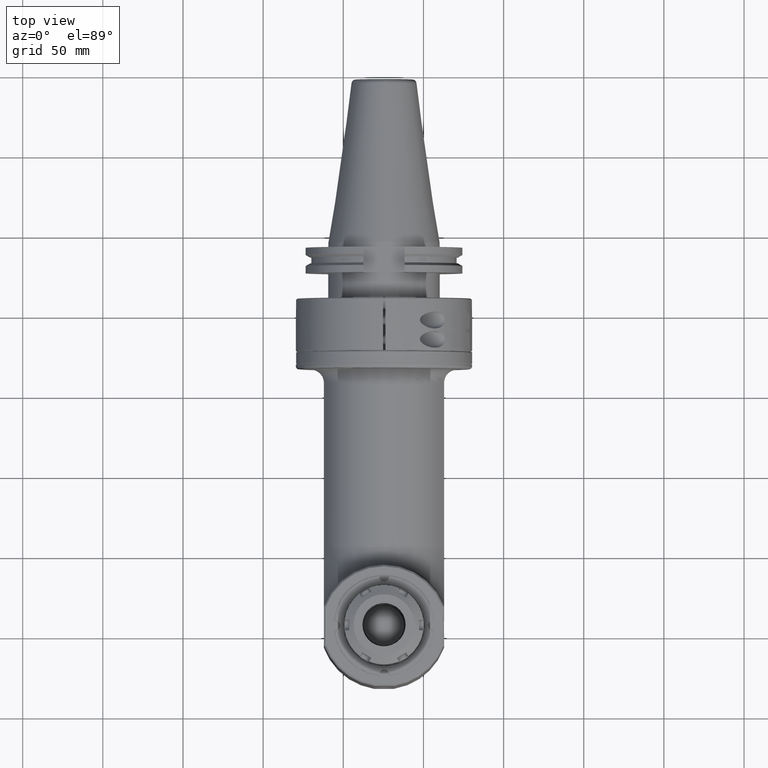
[diagram: clean part render]
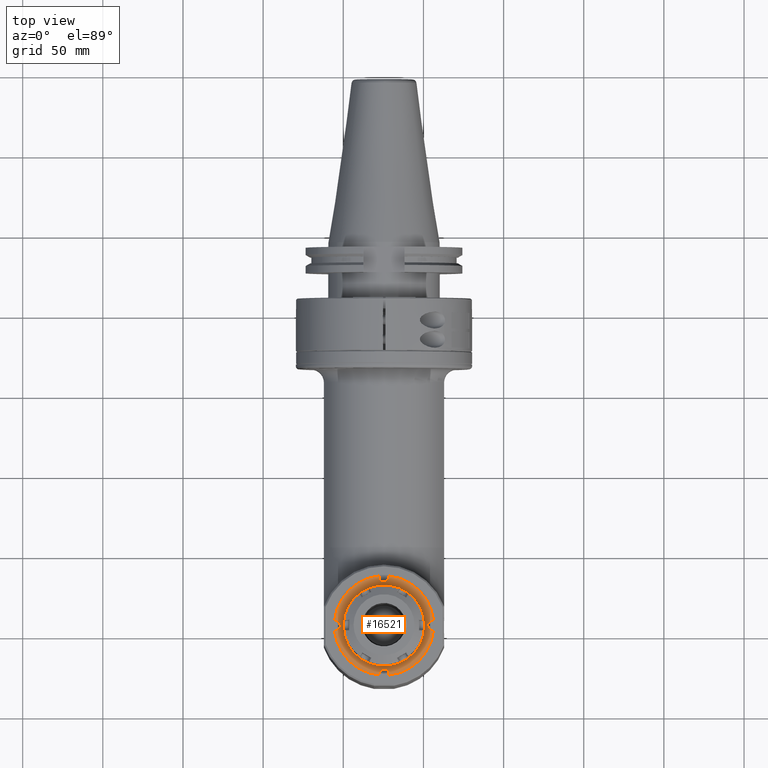
[diagram: same view with one face highlighted and labeled with its STEP entity id]
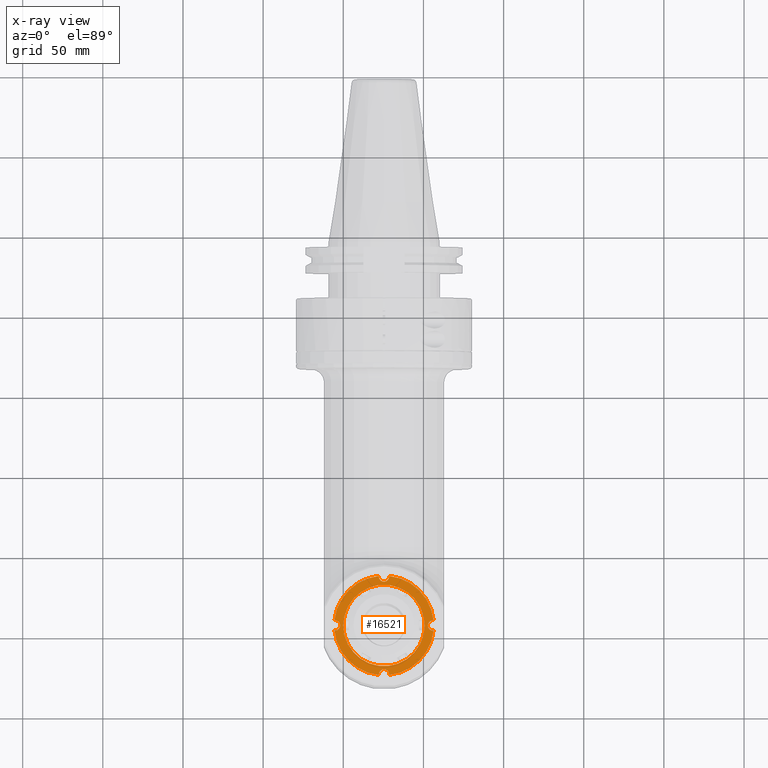
[diagram: x-ray of the same camera — body ghosted, the highlighted face saturated]
A machine part, top view. The second image highlights one B-rep face of the part: STEP entity #16521.
The next image is the same camera in x-ray: the body ghosted, the highlighted face saturated — about 0% of this face is hidden behind the body in this view.
In plain terms, the highlighted planar face has unit normal (0, -0, 1).
Its self-contained STEP definition (entity closure, byte-faithful):
#503=FACE_BOUND('',#2447,.T.);
#719=PLANE('',#17825);
#1434=FACE_OUTER_BOUND('',#2446,.T.);
#2446=EDGE_LOOP('',(#12830,#12831,#12832,#12833,#12834,#12835,#12836,#12837));
#2447=EDGE_LOOP('',(#12838));
#3569=CIRCLE('',#17810,31.04996948053);
#3570=CIRCLE('',#17812,3.199977448179);
#3571=CIRCLE('',#17814,31.04994608035);
#3572=CIRCLE('',#17816,3.19997845597);
#3573=CIRCLE('',#17818,31.04997346802);
#3574=CIRCLE('',#17820,3.199978020371);
#3575=CIRCLE('',#17822,31.04999980057);
#3576=CIRCLE('',#17824,3.199977448179);
#3577=CIRCLE('',#17826,25.4);
#7419=VERTEX_POINT('',#26784);
#7420=VERTEX_POINT('',#26789);
#7421=VERTEX_POINT('',#26796);
#7422=VERTEX_POINT('',#26803);
#7423=VERTEX_POINT('',#26810);
#7424=VERTEX_POINT('',#26817);
#7425=VERTEX_POINT('',#26824);
#7426=VERTEX_POINT('',#26831);
#7427=VERTEX_POINT('',#26840);
#9371=EDGE_CURVE('',#7420,#7419,#3569,.T.);
#9373=EDGE_CURVE('',#7421,#7420,#3570,.T.);
#9375=EDGE_CURVE('',#7422,#7421,#3571,.T.);
#9377=EDGE_CURVE('',#7423,#7422,#3572,.T.);
#9379=EDGE_CURVE('',#7424,#7423,#3573,.T.);
#9381=EDGE_CURVE('',#7425,#7424,#3574,.T.);
#9383=EDGE_CURVE('',#7426,#7425,#3575,.T.);
#9385=EDGE_CURVE('',#7419,#7426,#3576,.T.);
#9386=EDGE_CURVE('',#7427,#7427,#3577,.T.);
#12830=ORIENTED_EDGE('',*,*,#9373,.T.);
#12831=ORIENTED_EDGE('',*,*,#9371,.T.);
#12832=ORIENTED_EDGE('',*,*,#9385,.T.);
#12833=ORIENTED_EDGE('',*,*,#9383,.T.);
#12834=ORIENTED_EDGE('',*,*,#9381,.T.);
#12835=ORIENTED_EDGE('',*,*,#9379,.T.);
#12836=ORIENTED_EDGE('',*,*,#9377,.T.);
#12837=ORIENTED_EDGE('',*,*,#9375,.T.);
#12838=ORIENTED_EDGE('',*,*,#9386,.F.);
#16521=ADVANCED_FACE('',(#1434,#503),#719,.T.);
#17810=AXIS2_PLACEMENT_3D('',#26790,#20673,#20674);
#17812=AXIS2_PLACEMENT_3D('',#26797,#20677,#20678);
#17814=AXIS2_PLACEMENT_3D('',#26804,#20681,#20682);
#17816=AXIS2_PLACEMENT_3D('',#26811,#20685,#20686);
#17818=AXIS2_PLACEMENT_3D('',#26818,#20689,#20690);
#17820=AXIS2_PLACEMENT_3D('',#26825,#20693,#20694);
#17822=AXIS2_PLACEMENT_3D('',#26832,#20697,#20698);
#17824=AXIS2_PLACEMENT_3D('',#26838,#20701,#20702);
#17825=AXIS2_PLACEMENT_3D('',#26839,#20703,#20704);
#17826=AXIS2_PLACEMENT_3D('',#26841,#20705,#20706);
#20673=DIRECTION('center_axis',(0.,0.,1.));
#20674=DIRECTION('ref_axis',(-0.994753334467709,-0.102302510063901,0.));
#20677=DIRECTION('center_axis',(0.,0.,-1.));
#20678=DIRECTION('ref_axis',(-0.120958298414199,0.992657589526591,0.));
#20681=DIRECTION('center_axis',(0.,0.,1.));
#20682=DIRECTION('ref_axis',(-0.102302487007003,0.994753336838928,0.));
#20685=DIRECTION('center_axis',(0.,0.,-1.));
#20686=DIRECTION('ref_axis',(0.992657076302107,0.120962510173001,0.));
#20689=DIRECTION('center_axis',(0.,0.,1.));
#20690=DIRECTION('ref_axis',(0.99475334275902,0.102302429442102,0.));
#20693=DIRECTION('center_axis',(0.,0.,-1.));
#20694=DIRECTION('ref_axis',(0.120966634667999,-0.992656573693591,0.));
#20697=DIRECTION('center_axis',(0.,0.,1.));
#20698=DIRECTION('ref_axis',(0.102302463884499,-0.994753339216894,0.));
#20701=DIRECTION('center_axis',(0.,0.,-1.));
#20702=DIRECTION('ref_axis',(-0.992657145006175,-0.120961946364097,0.));
#20703=DIRECTION('center_axis',(0.,0.,1.));
#20704=DIRECTION('ref_axis',(-1.,0.,0.));
#20705=DIRECTION('center_axis',(0.,0.,1.));
#20706=DIRECTION('ref_axis',(-1.,0.,0.));
#26784=CARTESIAN_POINT('',(-3.17648218692273,-30.8870614619133,69.9999999993849));
#26789=CARTESIAN_POINT('',(-30.8870614622286,-3.1764821866024,69.9999999992715));
#26790=CARTESIAN_POINT('Origin',(-1.783784421393E-14,1.167066443486E-12,
70.));
#26796=CARTESIAN_POINT('',(-30.8870376401283,3.17648508928092,69.9999999992695));
#26797=CARTESIAN_POINT('Origin',(-30.5,3.164135620182E-14,70.));
#26803=CARTESIAN_POINT('',(-3.17648611744665,30.8870375343555,69.9999999992825));
#26804=CARTESIAN_POINT('Origin',(-2.149021962284E-12,2.198241588758E-13,
70.));
#26810=CARTESIAN_POINT('',(3.17648272048507,30.8870654154932,69.9999999994137));
#26811=CARTESIAN_POINT('Origin',(-2.186572604732E-14,30.5,70.));
#26817=CARTESIAN_POINT('',(30.8870654616957,3.17648227558628,69.9999999992331));
#26818=CARTESIAN_POINT('Origin',(-6.599908416571E-13,-1.499245172454E-12,
70.));
#26824=CARTESIAN_POINT('',(30.887092265013,-3.17647901304668,70.0000000007036));
#26825=CARTESIAN_POINT('Origin',(30.5,0.,70.));
#26831=CARTESIAN_POINT('',(3.17647842919127,-30.8870923251565,70.0000000006637));
#26832=CARTESIAN_POINT('Origin',(3.254431150002E-13,2.451372438372E-13,
70.));
#26838=CARTESIAN_POINT('Origin',(-1.426069832864E-14,-30.5,70.));
#26839=CARTESIAN_POINT('Origin',(0.,0.,70.));
#26840=CARTESIAN_POINT('',(25.3995700651788,-0.147785331051101,70.));
#26841=CARTESIAN_POINT('Origin',(0.,0.,70.));